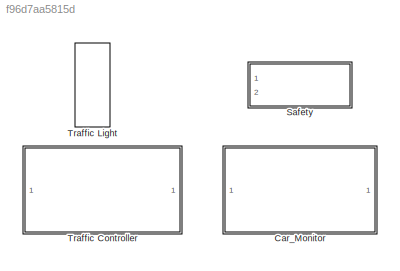
MODEL slx_f96d7aa5815d
KIND library
CONFIG AbsTol = auto
CONFIG EnableMultiTasking = on
CONFIG FixedStep = auto
CONFIG MaxStep = auto
CONFIG MinStep = auto
CONFIG RelTol = 1e-3
CONFIG SampleTimeConstraint = Unconstrained
CONFIG Solver = ode45
CONFIG SolverName = ode45
CONFIG StartTime = 0.0
CONFIG StopTime = 10.0
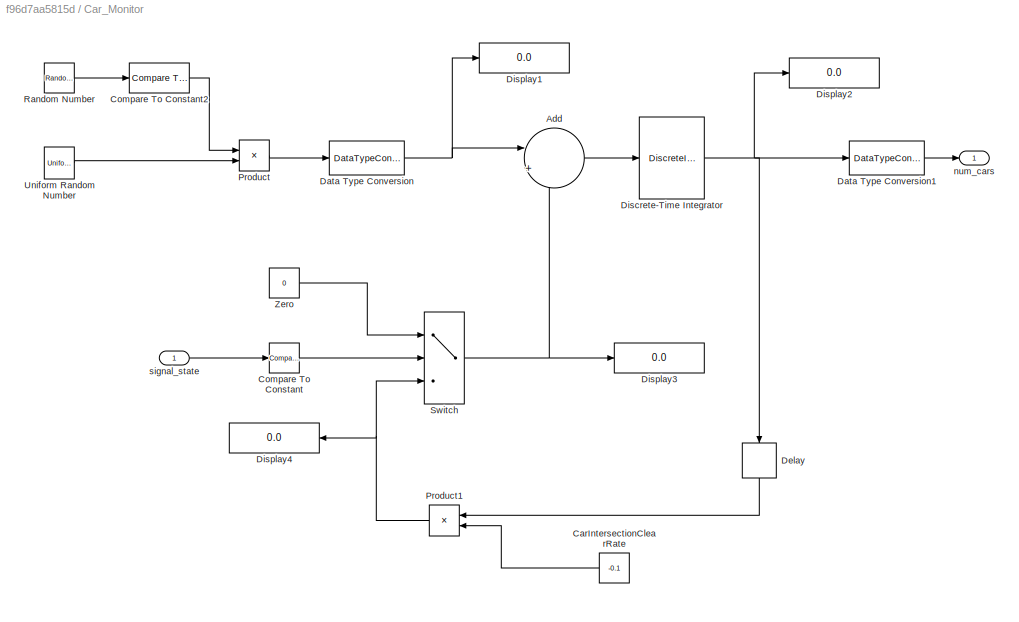
BLOCK [SubSystem] Car_Monitor
  Ports = [1, 1]
  RequestExecContextInheritance = off
  Variant = off
BLOCK [Sum] Car_Monitor/Add
  IconShape = round
  InputSameDT = off
  Inputs = |++
  OutDataTypeStr = Inherit: Inherit via internal rule
  Ports = [2, 1]
  SaturateOnIntegerOverflow = off
BLOCK [Constant] Car_Monitor/CarIntersectionClearRate
  Value = -0.1
BLOCK [Reference] Car_Monitor/Compare To Constant  REF=simulink/Logic and Bit
Operations/Compare
To Constant
  Ports = [1, 1]
  SourceBlock = simulink/Logic and Bit\nOperations/Compare\nTo Constant
  SourceProductBaseCode = SL
  SourceProductName = Simulink
  SourceType = Compare To Constant
BLOCK [Reference] Car_Monitor/Compare To Constant2  REF=simulink/Logic and Bit
Operations/Compare
To Constant
  Ports = [1, 1]
  SourceBlock = simulink/Logic and Bit\nOperations/Compare\nTo Constant
  SourceProductBaseCode = SL
  SourceProductName = Simulink
  SourceType = Compare To Constant
BLOCK [DataTypeConversion] Car_Monitor/Data Type Conversion
  RndMeth = Floor
  SaturateOnIntegerOverflow = off
BLOCK [DataTypeConversion] Car_Monitor/Data Type Conversion1
  OutDataTypeStr = int32
  RndMeth = Floor
  SaturateOnIntegerOverflow = off
BLOCK [Delay] Car_Monitor/Delay
  DelayLength = 1
  InitialCondition = 0
  InputPortMap = u0
  Ports = [1, 1]
BLOCK [DiscreteIntegrator] Car_Monitor/Discrete-Time Integrator
  ICPrevOutput = DiscIntNeverNeededParam
  ICPrevScaledInput = DiscIntNeverNeededParam
  LimitOutput = on
  LowerSaturationLimit = 0
  Ports = [1, 1]
  SampleTime = -1
BLOCK [Display] Car_Monitor/Display1
  Decimation = 1
  Ports = [1]
BLOCK [Display] Car_Monitor/Display2
  Decimation = 1
  Ports = [1]
BLOCK [Display] Car_Monitor/Display3
  Decimation = 1
  Ports = [1]
BLOCK [Display] Car_Monitor/Display4
  Decimation = 1
  Ports = [1]
BLOCK [Product] Car_Monitor/Product
  InputSameDT = off
  OutDataTypeStr = Inherit: Inherit via internal rule
  Ports = [2, 1]
  RndMeth = Floor
  SaturateOnIntegerOverflow = off
BLOCK [Product] Car_Monitor/Product1
  InputSameDT = off
  OutDataTypeStr = Inherit: Inherit via internal rule
  Ports = [2, 1]
  RndMeth = Floor
  SaturateOnIntegerOverflow = off
BLOCK [RandomNumber] Car_Monitor/Random Number
  SampleTime = 0.1
BLOCK [Switch] Car_Monitor/Switch
  Criteria = u2 ~= 0
  InputSameDT = off
  SaturateOnIntegerOverflow = off
BLOCK [UniformRandomNumber] Car_Monitor/Uniform Random Number
  Maximum = 5
  Minimum = 0
  SampleTime = 0.1
BLOCK [Constant] Car_Monitor/Zero
  Value = 0
BLOCK [Outport] Car_Monitor/num_cars
  IconDisplay = Port number
BLOCK [Inport] Car_Monitor/signal_state
  IconDisplay = Port number
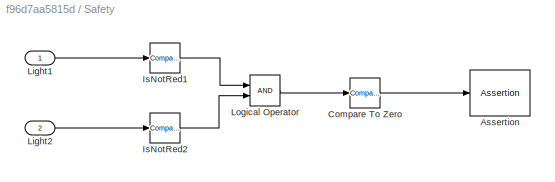
BLOCK [SubSystem] Safety
  Ports = [2]
  RequestExecContextInheritance = off
  TreatAsAtomicUnit = on
  Variant = off
BLOCK [Assertion] Safety/Assertion
BLOCK [Reference] Safety/Compare To Zero  REF=simulink/Logic and Bit
Operations/Compare
To Zero
  Ports = [1, 1]
  SourceBlock = simulink/Logic and Bit\nOperations/Compare\nTo Zero
  SourceProductBaseCode = SL
  SourceProductName = Simulink
  SourceType = Compare To Zero
BLOCK [Reference] Safety/IsNotRed1  REF=simulink/Logic and Bit
Operations/Compare
To Constant
  Ports = [1, 1]
  SourceBlock = simulink/Logic and Bit\nOperations/Compare\nTo Constant
  SourceProductBaseCode = SL
  SourceProductName = Simulink
  SourceType = Compare To Constant
BLOCK [Reference] Safety/IsNotRed2  REF=simulink/Logic and Bit
Operations/Compare
To Constant
  Ports = [1, 1]
  SourceBlock = simulink/Logic and Bit\nOperations/Compare\nTo Constant
  SourceProductBaseCode = SL
  SourceProductName = Simulink
  SourceType = Compare To Constant
BLOCK [Inport] Safety/Light1
  IconDisplay = Port number
BLOCK [Inport] Safety/Light2
  IconDisplay = Port number
  Port = 2
BLOCK [Logic] Safety/Logical Operator
  AllPortsSameDT = off
  OutDataTypeStr = boolean
  Ports = [2, 1]
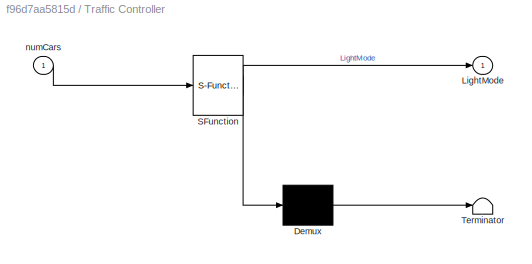
BLOCK [SubSystem] Traffic Controller
  ErrorFcn = Stateflow.Translate.translate
  PermitHierarchicalResolution = ExplicitOnly
  Ports = [1, 1]
  RequestExecContextInheritance = off
  SFBlockType = Chart
  TreatAsAtomicUnit = on
  Variant = off
BLOCK [Demux] Traffic Controller/ Demux 
  Outputs = 1
  Ports = [1, 1]
BLOCK [S-Function] Traffic Controller/ SFunction 
  EnableBusSupport = off
  FunctionName = sf_sfun
  Parameters = GREENDELAY,MAXREDDELAY,MINGREENDELAY,REDDELAY,YELLOWDELAY
  PortCounts = [1 2]
  Ports = [1, 2]
  SFcnIsStateOwnerBlock = off
  SFunctionDeploymentMode = off
  Tag = Stateflow S-Function sf_traffic_light_lib 3
BLOCK [Terminator] Traffic Controller/ Terminator 
BLOCK [Outport] Traffic Controller/LightMode
  IconDisplay = Port number
BLOCK [Inport] Traffic Controller/numCars
  IconDisplay = Port number
BLOCK [M-S-Function] Traffic Light
  FunctionName = traffic_light
  Parameters = mode
  Ports = [1]
LINE Car_Monitor/Add:1 -> Car_Monitor/Discrete-Time Integrator:1
LINE Car_Monitor/CarIntersectionClearRate:1 -> Car_Monitor/Product1:2
LINE Car_Monitor/Compare To Constant2:1 -> Car_Monitor/Product:1
LINE Car_Monitor/Compare To Constant:1 -> Car_Monitor/Switch:2
LINE Car_Monitor/Data Type Conversion1:1 -> Car_Monitor/num_cars:1
NET Car_Monitor/Data Type Conversion:1 -> Car_Monitor/Add:1, Car_Monitor/Display1:1
LINE Car_Monitor/Delay:1 -> Car_Monitor/Product1:1
NET Car_Monitor/Discrete-Time Integrator:1 -> Car_Monitor/Data Type Conversion1:1, Car_Monitor/Delay:1, Car_Monitor/Display2:1
NET Car_Monitor/Product1:1 -> Car_Monitor/Display4:1, Car_Monitor/Switch:3
LINE Car_Monitor/Product:1 -> Car_Monitor/Data Type Conversion:1
LINE Car_Monitor/Random Number:1 -> Car_Monitor/Compare To Constant2:1
NET Car_Monitor/Switch:1 -> Car_Monitor/Add:2, Car_Monitor/Display3:1
LINE Car_Monitor/Uniform Random Number:1 -> Car_Monitor/Product:2
LINE Car_Monitor/Zero:1 -> Car_Monitor/Switch:1
LINE Car_Monitor/signal_state:1 -> Car_Monitor/Compare To Constant:1
LINE Safety/Compare To Zero:1 -> Safety/Assertion:1
LINE Safety/IsNotRed1:1 -> Safety/Logical Operator:1
LINE Safety/IsNotRed2:1 -> Safety/Logical Operator:2
LINE Safety/Light1:1 -> Safety/IsNotRed1:1
LINE Safety/Light2:1 -> Safety/IsNotRed2:1
LINE Safety/Logical Operator:1 -> Safety/Compare To Zero:1
note: NET lines group one-source signal fan-out (src -> all destinations, sorted); 1:1 wires keep LINE
CHART Traffic Controller states=6 transitions=10
  STATE_LABEL 'Red'
  STATE_LABEL 'DelayState'
  STATE_LABEL 'WaitForInput'
  STATE_LABEL 'WaitUntilSafeToChange\ndu: greenLightRequested = true;\n'
  STATE_LABEL '[after(REDDELAY, sec)]'
  STATE_LABEL '[numCars > 0]'
  STATE_LABEL '[after(MAXREDDELAY,sec)]'
  STATE_LABEL 'DelayState'
  STATE_LABEL 'WaitForInput'
  STATE_LABEL 'WaitUntilSafeToChange\ndu: greenLightRequested = true;\n'
  STATE_LABEL 'Yellow\nex:\ngreenLightLocked = false;'
  STATE_LABEL 'Green\nen: greenLightLocked = true;\ngreenLightRequested = false;\n'
